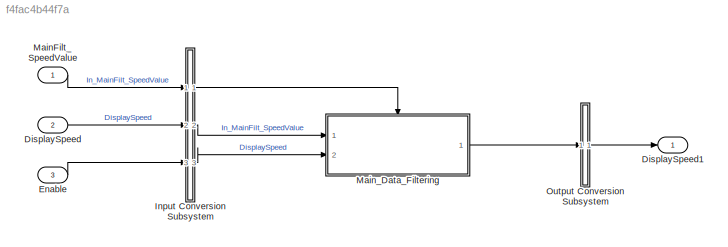
MODEL slx_f4fac4b44f7a
KIND model
CONFIG AbsTol = auto
CONFIG EnableMultiTasking = off
CONFIG FixedStep = 0.01
CONFIG MaxStep = auto
CONFIG MinStep = auto
CONFIG RelTol = 1e-3
CONFIG SampleTimeConstraint = Unconstrained
CONFIG SolverName = FixedStepDiscrete
CONFIG StartTime = 0.0
CONFIG StopTime = 10.0
BLOCK [Inport] DisplaySpeed
  Interpolate = off
  OutDataTypeStr = fixdt('ufix16_Sp01')
  Port = 2
  PortDimensions = [1]
  SampleTime = 0.01
  SignalType = real
  VarSizeSig = No
BLOCK [Outport] DisplaySpeed1
BLOCK [Inport] Enable
  Interpolate = off
  OutDataTypeStr = boolean
  Port = 3
  PortDimensions = [1]
  SampleTime = 0.01
  SignalType = real
  VarSizeSig = No
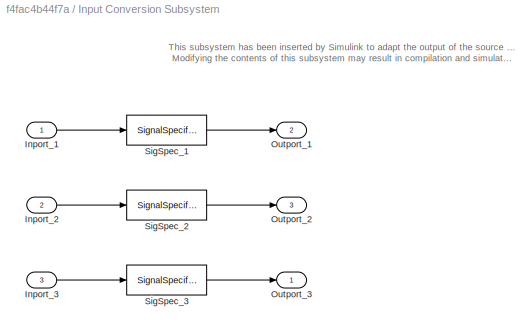
BLOCK [SubSystem] Input Conversion Subsystem
  AttributesFormatString = %<Description>
  Description = Signal spec.\nand routing
  Permissions = ReadOnly
  PermitHierarchicalResolution = ExplicitOnly
  Ports = [3, 3]
  RequestExecContextInheritance = off
  Tag = __SLT_ICS__
  TreatAsGroupedWhenPropagatingVariantConditions = off
  UserDataPersistent = on
BLOCK [Inport] Input Conversion Subsystem/Inport_1
BLOCK [Inport] Input Conversion Subsystem/Inport_2
  Port = 2
BLOCK [Inport] Input Conversion Subsystem/Inport_3
  Port = 3
BLOCK [Outport] Input Conversion Subsystem/Outport_1
  Port = 2
BLOCK [Outport] Input Conversion Subsystem/Outport_2
  Port = 3
BLOCK [Outport] Input Conversion Subsystem/Outport_3
BLOCK [SignalSpecification] Input Conversion Subsystem/SigSpec_1
  Dimensions = [1]
  OutDataTypeStr = uint8
  SampleTime = 0.01
  SignalType = real
  VarSizeSig = No
BLOCK [SignalSpecification] Input Conversion Subsystem/SigSpec_2
  Dimensions = [1]
  OutDataTypeStr = fixdt('ufix16_Sp01')
  SampleTime = 0.01
  SignalType = real
  VarSizeSig = No
BLOCK [SignalSpecification] Input Conversion Subsystem/SigSpec_3
  Dimensions = [1]
  OutDataTypeStr = boolean
  SampleTime = 0.01
  SignalType = real
  VarSizeSig = No
BLOCK [Inport] MainFilt_SpeedValue
  Interpolate = off
  OutDataTypeStr = uint8
  OutMax = 3
  OutMin = 1
  PortDimensions = [1]
  SampleTime = 0.01
  SignalType = real
  VarSizeSig = No
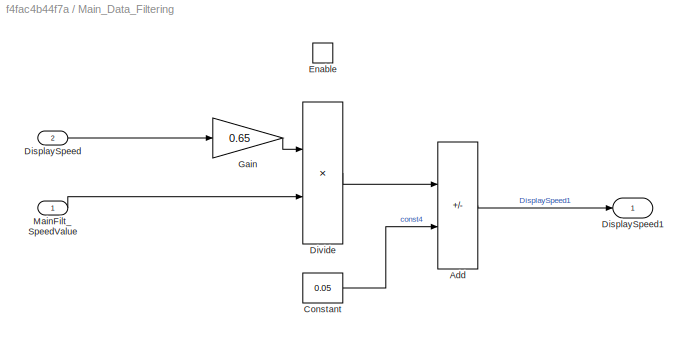
BLOCK [SubSystem] Main_Data_Filtering
  Ports = [2, 1, 1]
  RequestExecContextInheritance = off
  TreatAsAtomicUnit = on
BLOCK [Sum] Main_Data_Filtering/Add
  AccumDataTypeStr = fixdt(0,16,0.01,0)
  IconShape = rectangular
  Inputs = +-
  OutDataTypeStr = fixdt(0,16,0.01,0)
  Ports = [2, 1]
BLOCK [Constant] Main_Data_Filtering/Constant
  OutDataTypeStr = fixdt(0,16,0.01,0)
  OutMax = 0.05
  OutMin = 0.05
  Value = 0.05
BLOCK [Inport] Main_Data_Filtering/DisplaySpeed
  OutDataTypeStr = fixdt(0,16,0.01,0)
  Port = 2
  PortDimensions = 1
  SampleTime = 0.01
BLOCK [Outport] Main_Data_Filtering/DisplaySpeed1
  OutDataTypeStr = fixdt(0,16,0.01,0)
  PortDimensions = 1
  SampleTime = 0.01
BLOCK [Product] Main_Data_Filtering/Divide
  Inputs = */
  OutDataTypeStr = fixdt(0,16,0.01,0)
  Ports = [2, 1]
BLOCK [EnablePort] Main_Data_Filtering/Enable
  Ports = []
BLOCK [Gain] Main_Data_Filtering/Gain
  Gain = 0.65
  OutDataTypeStr = fixdt(0,16,0.01,0)
  ParamDataTypeStr = fixdt(0,16,0.01,0)
  ParamMax = 0.65
  ParamMin = 0.65
BLOCK [Inport] Main_Data_Filtering/MainFilt_SpeedValue
  OutDataTypeStr = fixdt(0,8,1,0)
  OutMax = 3
  OutMin = 1
  PortDimensions = 1
  SampleTime = 0.01
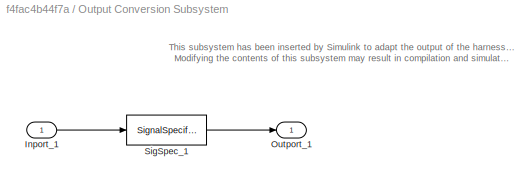
BLOCK [SubSystem] Output Conversion Subsystem
  AttributesFormatString = %<Description>
  Description = Signal spec.\nand routing
  Permissions = ReadOnly
  PermitHierarchicalResolution = ExplicitOnly
  Ports = [1, 1]
  RequestExecContextInheritance = off
  Tag = __SLT_OCS__
  TreatAsGroupedWhenPropagatingVariantConditions = off
  UserDataPersistent = on
BLOCK [Inport] Output Conversion Subsystem/Inport_1
BLOCK [Outport] Output Conversion Subsystem/Outport_1
BLOCK [SignalSpecification] Output Conversion Subsystem/SigSpec_1
  Dimensions = [1]
  OutDataTypeStr = fixdt('ufix16_Sp01')
  SampleTime = 0.01
  SignalType = real
  VarSizeSig = No
ANNOTATION Input Conversion Subsystem: This subsystem has been inserted by Simulink to adapt the output of the source blocks to the interface required by the harnessed component. Modifying the contents of this subsystem may result in compilation and simulation failure.
ANNOTATION Output Conversion Subsystem: This subsystem has been inserted by Simulink to adapt the output of the harnessed component to the interface required by the sink blocks. Modifying the contents of this subsystem may result in compilation and simulation failure.
LINE DisplaySpeed:1 -> Input Conversion Subsystem:2
LINE Enable:1 -> Input Conversion Subsystem:3
LINE Input Conversion Subsystem/Inport_1:1 -> Input Conversion Subsystem/SigSpec_1:1
LINE Input Conversion Subsystem/Inport_2:1 -> Input Conversion Subsystem/SigSpec_2:1
LINE Input Conversion Subsystem/Inport_3:1 -> Input Conversion Subsystem/SigSpec_3:1
LINE Input Conversion Subsystem/SigSpec_1:1 -> Input Conversion Subsystem/Outport_1:1
LINE Input Conversion Subsystem/SigSpec_2:1 -> Input Conversion Subsystem/Outport_2:1
LINE Input Conversion Subsystem/SigSpec_3:1 -> Input Conversion Subsystem/Outport_3:1
LINE Input Conversion Subsystem:1 -> Main_Data_Filtering:enable
LINE Input Conversion Subsystem:2 -> Main_Data_Filtering:1
LINE Input Conversion Subsystem:3 -> Main_Data_Filtering:2
LINE MainFilt_SpeedValue:1 -> Input Conversion Subsystem:1
LINE Main_Data_Filtering/Add:1 -> Main_Data_Filtering/DisplaySpeed1:1
LINE Main_Data_Filtering/Constant:1 -> Main_Data_Filtering/Add:2
LINE Main_Data_Filtering/DisplaySpeed:1 -> Main_Data_Filtering/Gain:1
LINE Main_Data_Filtering/Divide:1 -> Main_Data_Filtering/Add:1
LINE Main_Data_Filtering/Gain:1 -> Main_Data_Filtering/Divide:1
LINE Main_Data_Filtering/MainFilt_SpeedValue:1 -> Main_Data_Filtering/Divide:2
LINE Main_Data_Filtering:1 -> Output Conversion Subsystem:1
LINE Output Conversion Subsystem/Inport_1:1 -> Output Conversion Subsystem/SigSpec_1:1
LINE Output Conversion Subsystem/SigSpec_1:1 -> Output Conversion Subsystem/Outport_1:1
LINE Output Conversion Subsystem:1 -> DisplaySpeed1:1
